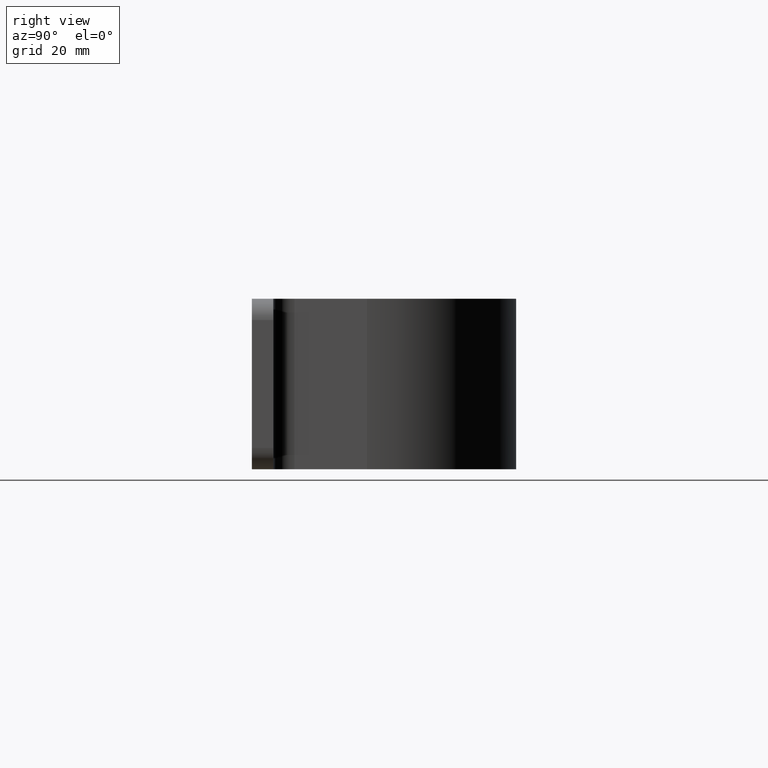
[diagram: clean part render]
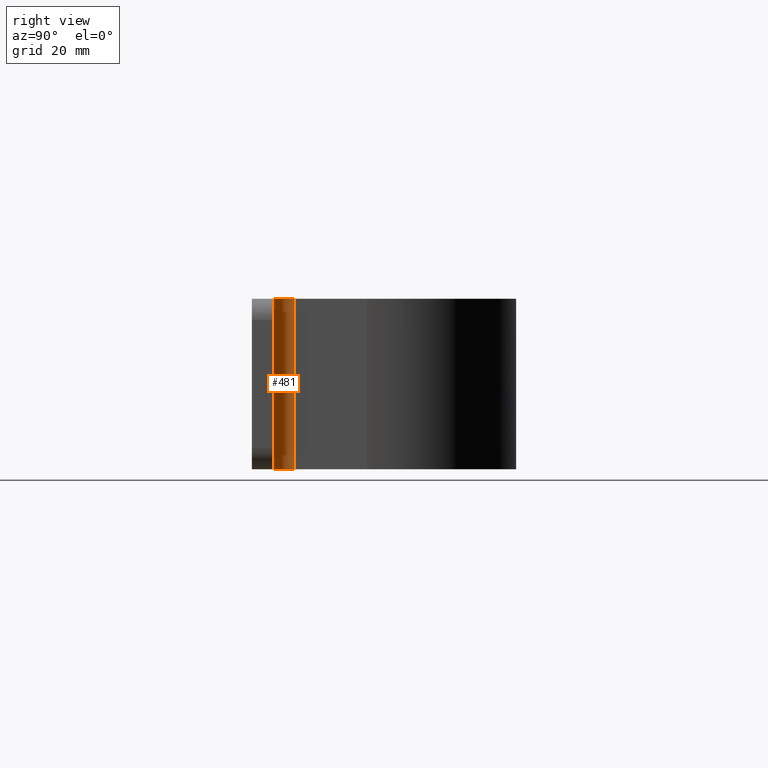
[diagram: same view with one face highlighted and labeled with its STEP entity id]
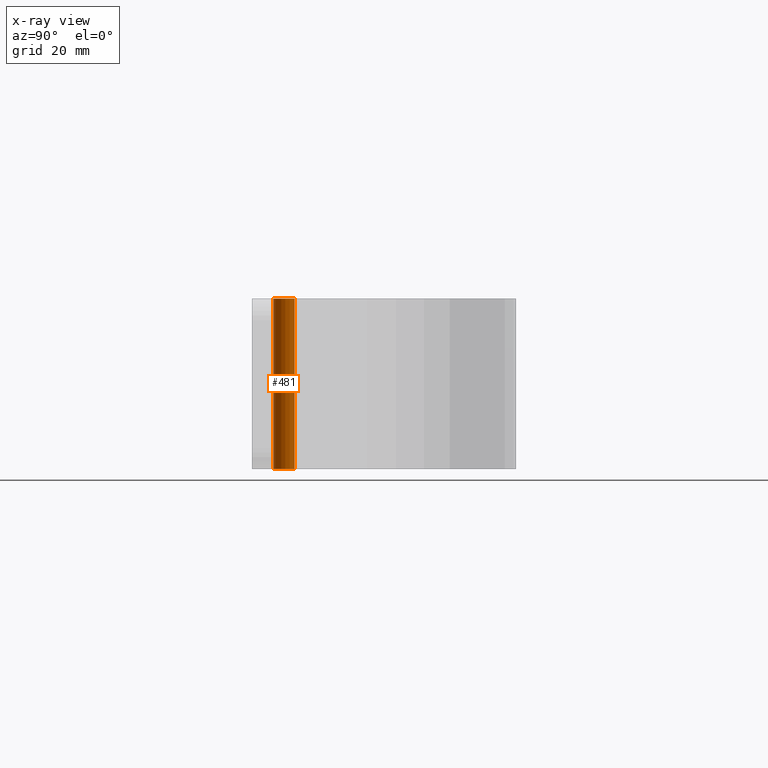
[diagram: x-ray of the same camera — body ghosted, the highlighted face saturated]
A machine part, right view. The second image highlights one B-rep face of the part: STEP entity #481.
The next image is the same camera in x-ray: the body ghosted, the highlighted face saturated — about 0% of this face is hidden behind the body in this view.
In plain terms, the highlighted cylindrical surface (edge-blend (fillet) strip) has radius 5 mm, axis along (-0, -0, -1).
Its self-contained STEP definition (entity closure, byte-faithful):
#33 = CARTESIAN_POINT ( 'NONE',  ( 40.00000000000000711, 7.999999999999989342, 20.00000000000000000 ) ) ;
#56 = CIRCLE ( 'NONE', #183, 4.999999999999997335 ) ;
#78 = CARTESIAN_POINT ( 'NONE',  ( 40.00000000000000711, 7.999999999999989342, -20.00000000000000000 ) ) ;
#95 = CARTESIAN_POINT ( 'NONE',  ( 40.00000000000000000, 12.99999999999999112, -20.00000000000000000 ) ) ;
#101 = DIRECTION ( 'NONE',  ( -1.000000000000000000, 0.000000000000000000, 0.000000000000000000 ) ) ;
#160 = LINE ( 'NONE', #171, #478 ) ;
#170 = DIRECTION ( 'NONE',  ( 1.000000000000000000, 0.000000000000000000, 0.000000000000000000 ) ) ;
#171 = CARTESIAN_POINT ( 'NONE',  ( 35.00000000000000000, 12.99999999999999112, 20.00000000000000000 ) ) ;
#180 = FACE_OUTER_BOUND ( 'NONE', #545, .T. ) ;
#183 = AXIS2_PLACEMENT_3D ( 'NONE', #324, #371, #298 ) ;
#211 = AXIS2_PLACEMENT_3D ( 'NONE', #621, #605, #101 ) ;
#222 = EDGE_CURVE ( 'NONE', #789, #240, #160, .T. ) ;
#229 = ORIENTED_EDGE ( 'NONE', *, *, #698, .T. ) ;
#240 = VERTEX_POINT ( 'NONE', #523 ) ;
#298 = DIRECTION ( 'NONE',  ( 1.000000000000000000, 0.000000000000000000, 0.000000000000000000 ) ) ;
#315 = CIRCLE ( 'NONE', #1092, 4.999999999999997335 ) ;
#324 = CARTESIAN_POINT ( 'NONE',  ( 40.00000000000000000, 12.99999999999999112, 20.00000000000000000 ) ) ;
#371 = DIRECTION ( 'NONE',  ( 0.000000000000000000, 0.000000000000000000, 1.000000000000000000 ) ) ;
#375 = VERTEX_POINT ( 'NONE', #33 ) ;
#387 = EDGE_CURVE ( 'NONE', #375, #1085, #452, .T. ) ;
#420 = VECTOR ( 'NONE', #1071, 1000.000000000000000 ) ;
#446 = CARTESIAN_POINT ( 'NONE',  ( 40.00000000000000711, 7.999999999999989342, 20.00000000000000000 ) ) ;
#452 = LINE ( 'NONE', #446, #420 ) ;
#478 = VECTOR ( 'NONE', #1050, 1000.000000000000000 ) ;
#481 = ADVANCED_FACE ( 'NONE', ( #180 ), #1077, .F. ) ;
#510 = ORIENTED_EDGE ( 'NONE', *, *, #222, .F. ) ;
#523 = CARTESIAN_POINT ( 'NONE',  ( 35.00000000000000000, 12.99999999999999112, -20.00000000000000000 ) ) ;
#545 = EDGE_LOOP ( 'NONE', ( #808, #510, #229, #1031 ) ) ;
#605 = DIRECTION ( 'NONE',  ( -0.000000000000000000, -0.000000000000000000, -1.000000000000000000 ) ) ;
#621 = CARTESIAN_POINT ( 'NONE',  ( 40.00000000000000000, 12.99999999999999112, 20.00000000000000000 ) ) ;
#698 = EDGE_CURVE ( 'NONE', #789, #375, #56, .T. ) ;
#789 = VERTEX_POINT ( 'NONE', #1066 ) ;
#808 = ORIENTED_EDGE ( 'NONE', *, *, #873, .F. ) ;
#873 = EDGE_CURVE ( 'NONE', #240, #1085, #315, .T. ) ;
#1031 = ORIENTED_EDGE ( 'NONE', *, *, #387, .T. ) ;
#1049 = DIRECTION ( 'NONE',  ( 0.000000000000000000, 0.000000000000000000, 1.000000000000000000 ) ) ;
#1050 = DIRECTION ( 'NONE',  ( -0.000000000000000000, -0.000000000000000000, -1.000000000000000000 ) ) ;
#1066 = CARTESIAN_POINT ( 'NONE',  ( 35.00000000000000000, 12.99999999999999112, 20.00000000000000000 ) ) ;
#1071 = DIRECTION ( 'NONE',  ( -0.000000000000000000, -0.000000000000000000, -1.000000000000000000 ) ) ;
#1077 = CYLINDRICAL_SURFACE ( 'NONE', #211, 4.999999999999997335 ) ;
#1085 = VERTEX_POINT ( 'NONE', #78 ) ;
#1092 = AXIS2_PLACEMENT_3D ( 'NONE', #95, #1049, #170 ) ;